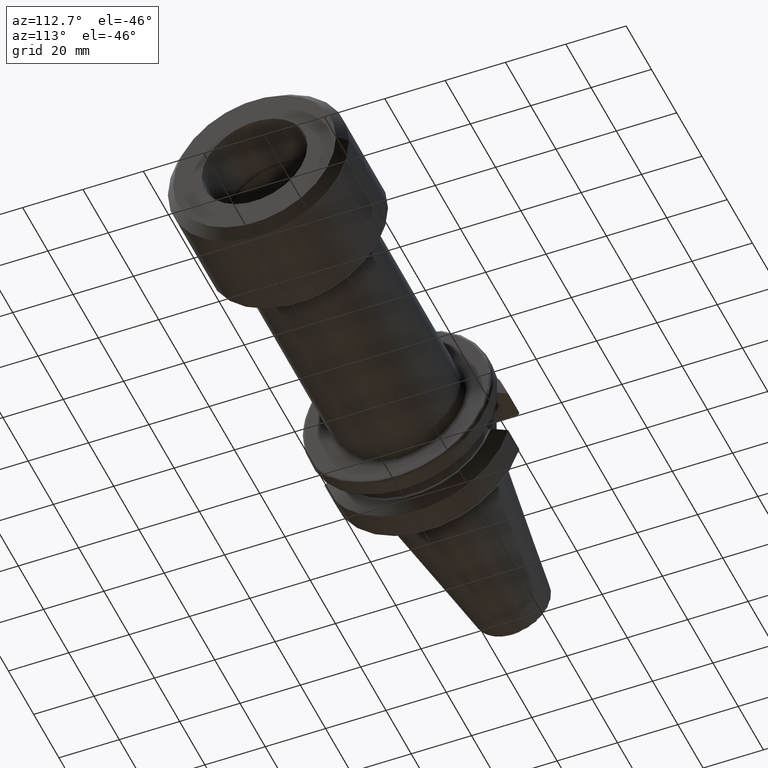
[diagram: clean part render]
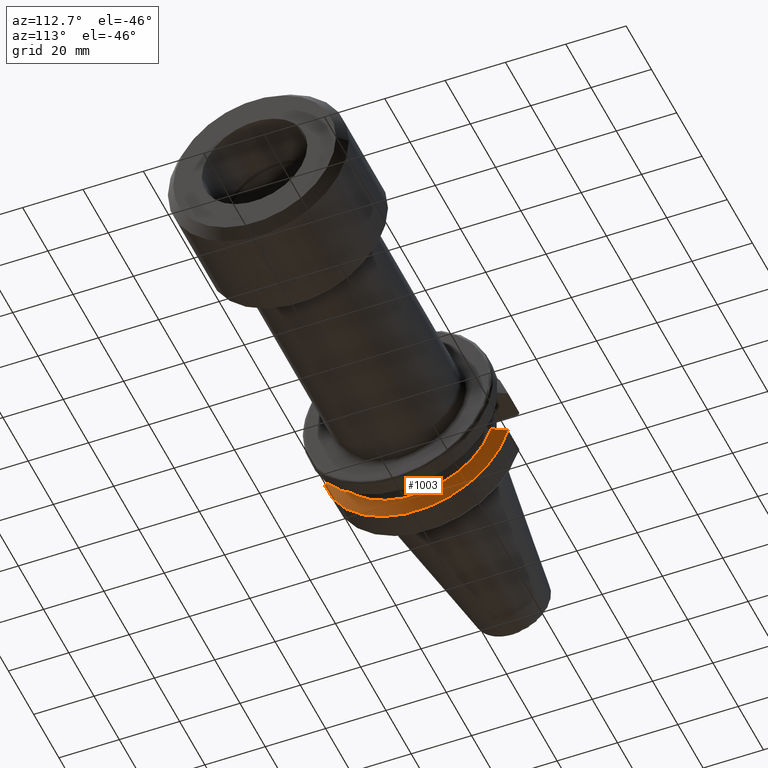
[diagram: same view with one face highlighted and labeled with its STEP entity id]
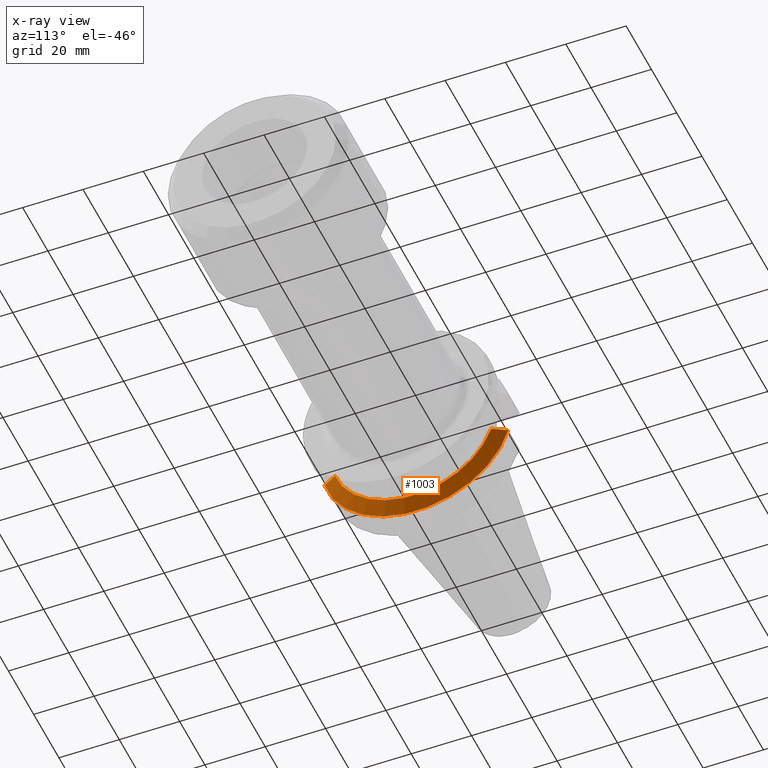
[diagram: x-ray of the same camera — body ghosted, the highlighted face saturated]
A machine part, auxiliary view. The second image highlights one B-rep face of the part: STEP entity #1003.
The next image is the same camera in x-ray: the body ghosted, the highlighted face saturated — about 0% of this face is hidden behind the body in this view.
In plain terms, the highlighted conical surface has half-angle 60.125 deg.
Its self-contained STEP definition (entity closure, byte-faithful):
#36=(
BOUNDED_CURVE()
B_SPLINE_CURVE(2,(#1765,#1766,#1767),.UNSPECIFIED.,.F.,.F.)
B_SPLINE_CURVE_WITH_KNOTS((3,3),(0.,0.52358279083281),.UNSPECIFIED.)
CURVE()
GEOMETRIC_REPRESENTATION_ITEM()
RATIONAL_B_SPLINE_CURVE((1.,1.00307360097546,1.))
REPRESENTATION_ITEM('')
);
#37=(
BOUNDED_CURVE()
B_SPLINE_CURVE(2,(#1822,#1823,#1824),.UNSPECIFIED.,.F.,.F.)
B_SPLINE_CURVE_WITH_KNOTS((3,3),(0.,0.52358279083281),.UNSPECIFIED.)
CURVE()
GEOMETRIC_REPRESENTATION_ITEM()
RATIONAL_B_SPLINE_CURVE((1.,1.00307360097546,1.))
REPRESENTATION_ITEM('')
);
#139=FACE_OUTER_BOUND('',#206,.T.);
#206=EDGE_LOOP('',(#799,#800,#801,#802));
#388=CIRCLE('',#1173,27.0940716549138);
#389=CIRCLE('',#1175,31.5000000000001);
#473=VERTEX_POINT('',#1762);
#474=VERTEX_POINT('',#1764);
#483=VERTEX_POINT('',#1816);
#484=VERTEX_POINT('',#1820);
#583=EDGE_CURVE('',#474,#473,#36,.T.);
#599=EDGE_CURVE('',#474,#483,#388,.T.);
#601=EDGE_CURVE('',#473,#484,#389,.T.);
#602=EDGE_CURVE('',#484,#483,#37,.T.);
#799=ORIENTED_EDGE('',*,*,#583,.T.);
#800=ORIENTED_EDGE('',*,*,#601,.T.);
#801=ORIENTED_EDGE('',*,*,#602,.T.);
#802=ORIENTED_EDGE('',*,*,#599,.F.);
#968=CONICAL_SURFACE('',#1174,29.2970358274569,1.0493792127616);
#1003=ADVANCED_FACE('',(#139),#968,.T.);
#1173=AXIS2_PLACEMENT_3D('',#1817,#1405,#1406);
#1174=AXIS2_PLACEMENT_3D('',#1819,#1408,#1409);
#1175=AXIS2_PLACEMENT_3D('',#1821,#1410,#1411);
#1405=DIRECTION('center_axis',(1.,0.,0.));
#1406=DIRECTION('ref_axis',(0.,0.,-1.));
#1408=DIRECTION('center_axis',(-1.,0.,0.));
#1409=DIRECTION('ref_axis',(0.,1.,0.));
#1410=DIRECTION('center_axis',(1.,0.,0.));
#1411=DIRECTION('ref_axis',(0.,0.,-1.));
#1762=CARTESIAN_POINT('',(11.5690363073382,-30.4540227227866,-8.05));
#1764=CARTESIAN_POINT('',(14.1,-25.8705666509569,-8.05));
#1765=CARTESIAN_POINT('Ctrl Pts',(14.1,-25.8705666509569,-8.05));
#1766=CARTESIAN_POINT('Ctrl Pts',(12.9374976962938,-27.989970265181,-8.05));
#1767=CARTESIAN_POINT('Ctrl Pts',(11.5690363073382,-30.4540227227866,-8.05));
#1816=CARTESIAN_POINT('',(14.1,25.8705666509569,-8.05));
#1817=CARTESIAN_POINT('Origin',(14.1,0.,0.));
#1819=CARTESIAN_POINT('Origin',(12.8345181536691,0.,0.));
#1820=CARTESIAN_POINT('',(11.5690363073382,30.4540227227866,-8.05));
#1821=CARTESIAN_POINT('Origin',(11.5690363073382,0.,0.));
#1822=CARTESIAN_POINT('Ctrl Pts',(11.5690363073382,30.4540227227866,-8.05));
#1823=CARTESIAN_POINT('Ctrl Pts',(12.9374976962938,27.989970265181,-8.05));
#1824=CARTESIAN_POINT('Ctrl Pts',(14.1,25.8705666509569,-8.05));